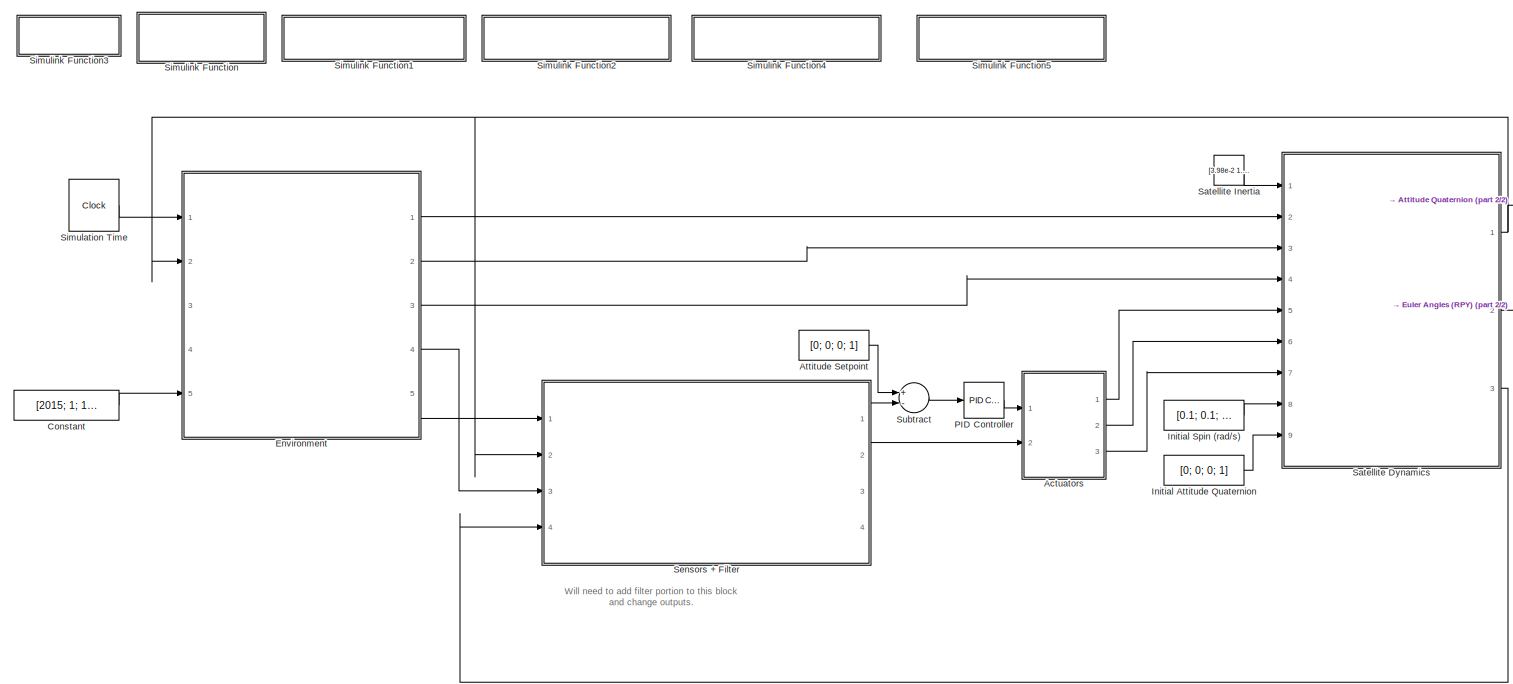
[diagram: root canvas - part 1/2, most of the canvas]
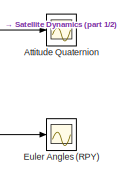
[diagram: root canvas - part 2/2, middle right region]
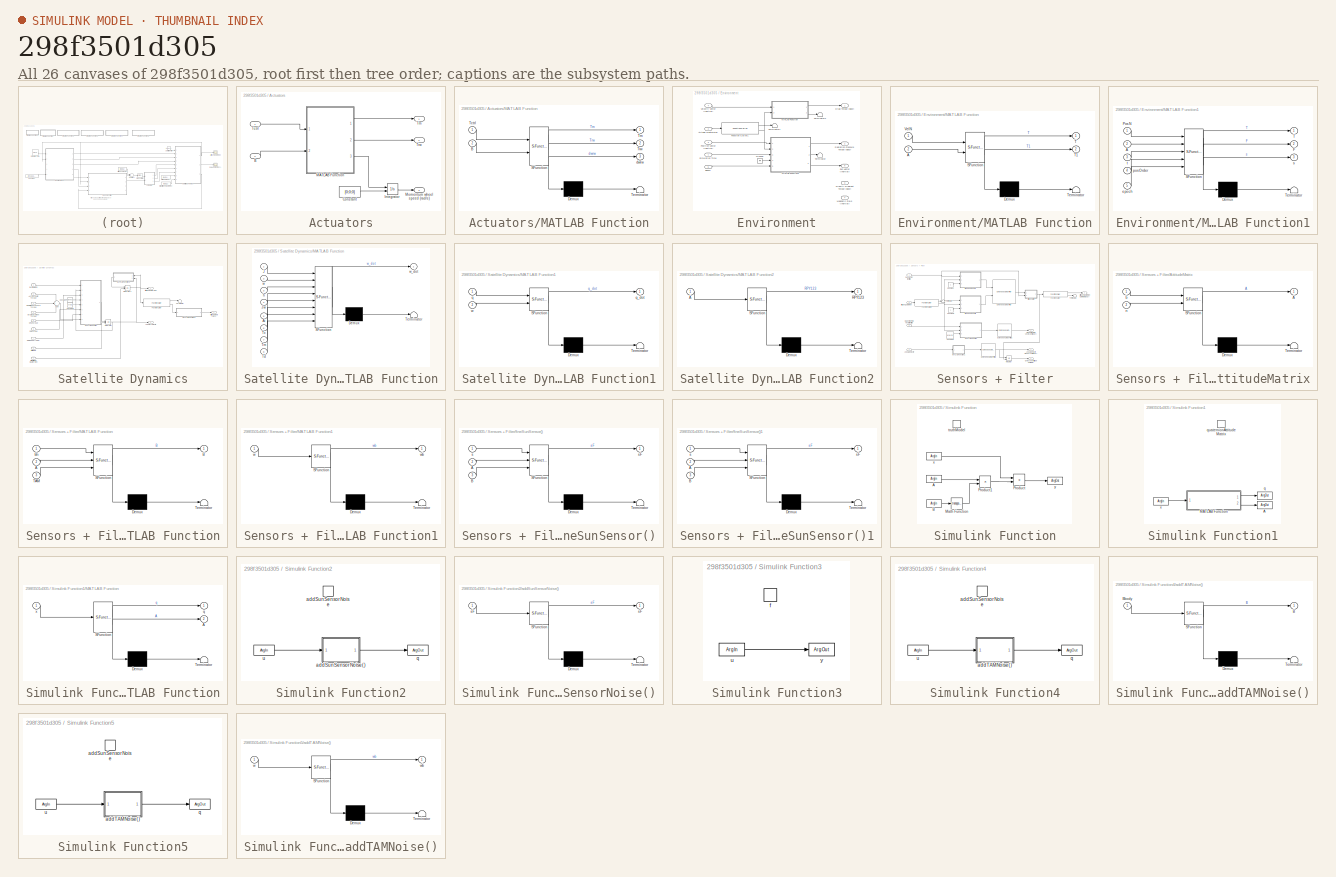
[diagram: thumbnail index - all 26 canvases of the model, root first then tree order]
MODEL slx_298f3501d305
KIND model
CONFIG AbsTol = auto
CONFIG EnableMultiTasking = off
CONFIG FixedStep = 1
CONFIG MaxStep = auto
CONFIG MinStep = auto
CONFIG RelTol = 1e-3
CONFIG SampleTimeConstraint = Unconstrained
CONFIG Solver = FixedStepAuto
CONFIG SolverName = FixedStepAuto
CONFIG StartTime = 0.0
CONFIG StopTime = 10000
BLOCK [SubSystem] Actuators
  Ports = [2, 3]
  RequestExecContextInheritance = off
  Variant = off
BLOCK [Inport] Actuators/B
  IconDisplay = Port number
  Port = 2
BLOCK [Constant] Actuators/Constant
  Value = [0;0;0]
BLOCK [Integrator] Actuators/Integrator
  InitialConditionSource = external
  Ports = [2, 1]
BLOCK [SubSystem] Actuators/MATLAB Function
  ErrorFcn = Stateflow.Translate.translate
  PermitHierarchicalResolution = ExplicitOnly
  Ports = [2, 3]
  RequestExecContextInheritance = off
  SFBlockType = MATLAB Function
  TreatAsAtomicUnit = on
  Variant = off
BLOCK [Demux] Actuators/MATLAB Function/ Demux 
  Outputs = 1
  Ports = [1, 1]
BLOCK [S-Function] Actuators/MATLAB Function/ SFunction 
  EnableBusSupport = on
  FunctionName = sf_sfun
  PortCounts = [2 4]
  Ports = [2, 4]
  SFcnIsStateOwnerBlock = off
  SFunctionDeploymentMode = off
  Tag = Stateflow S-Function ADCS_Model 15
BLOCK [Terminator] Actuators/MATLAB Function/ Terminator 
BLOCK [Inport] Actuators/MATLAB Function/B
  IconDisplay = Port number
  Port = 2
BLOCK [Inport] Actuators/MATLAB Function/Tctrl
  IconDisplay = Port number
BLOCK [Outport] Actuators/MATLAB Function/Tm
  IconDisplay = Port number
BLOCK [Outport] Actuators/MATLAB Function/Trw
  IconDisplay = Port number
  Port = 2
BLOCK [Outport] Actuators/MATLAB Function/dwrw
  IconDisplay = Port number
  Port = 3
BLOCK [Outport] Actuators/Momentum wheel speed (rad//s)
  IconDisplay = Port number
  Port = 3
BLOCK [Inport] Actuators/Tctrl
  IconDisplay = Port number
BLOCK [Outport] Actuators/Tm
  IconDisplay = Port number
BLOCK [Outport] Actuators/Trw
  IconDisplay = Port number
  Port = 2
BLOCK [Scope] Attitude Quaternion
  NumInputPorts = 1
  Ports = [1]
  ScopeSpecificationString = Simulink.scopes.TimeScopeBlockCfg('CurrentConfiguration', extmgr.ConfigurationSet(extmgr.Configuration('Core','General UI',true),extmgr.Configuration('Core','Source UI',true),extmgr.Configuration('Sources','WiredSimulink',true),extmgr.Configuration('Visuals','Time Domain',true),extmgr.Configuration('Tools','Plot Navigation',true),extmgr.Configuration('Tools','Measurements',true,'Version','2017b'))...<+45ch>
BLOCK [Constant] Attitude Setpoint
  Value = [0; 0; 0; 1]
BLOCK [Constant] Constant
  Value = [2015; 1; 1; 0; 0; 0]
BLOCK [SubSystem] Environment
  Ports = [5, 5]
  RequestExecContextInheritance = off
  Variant = off
BLOCK [Inport] Environment/Atitude Quaternion
  IconDisplay = Port number
  Port = 2
BLOCK [Outport] Environment/Drag Torque (Body)
  IconDisplay = Port number
BLOCK [Inport] Environment/Epoch
  IconDisplay = Port number
  Port = 5
BLOCK [FunctionCaller] Environment/Function Caller1
  FunctionPrototype = [q,A] = quaternionAttitudeMatrix(x)
  Ports = [1, 2]
BLOCK [Outport] Environment/Gravity Gradient Torque (Body)
  IconDisplay = Port number
  Port = 3
BLOCK [Ground] Environment/Ground
BLOCK [SubSystem] Environment/MATLAB Function
  ErrorFcn = Stateflow.Translate.translate
  PermitHierarchicalResolution = ExplicitOnly
  Ports = [2, 2]
  RequestExecContextInheritance = off
  SFBlockType = MATLAB Function
  TreatAsAtomicUnit = on
  Variant = off
BLOCK [Demux] Environment/MATLAB Function/ Demux 
  Outputs = 1
  Ports = [1, 1]
BLOCK [S-Function] Environment/MATLAB Function/ SFunction 
  EnableBusSupport = on
  FunctionName = sf_sfun
  PortCounts = [2 3]
  Ports = [2, 3]
  SFcnIsStateOwnerBlock = off
  SFunctionDeploymentMode = off
  Tag = Stateflow S-Function ADCS_Model 7
BLOCK [Terminator] Environment/MATLAB Function/ Terminator 
BLOCK [Inport] Environment/MATLAB Function/A
  IconDisplay = Port number
  Port = 2
BLOCK [Outport] Environment/MATLAB Function/T
  IconDisplay = Port number
BLOCK [Outport] Environment/MATLAB Function/T1
  IconDisplay = Port number
  Port = 2
BLOCK [Inport] Environment/MATLAB Function/VelN
  IconDisplay = Port number
BLOCK [SubSystem] Environment/MATLAB Function1
  ErrorFcn = Stateflow.Translate.translate
  PermitHierarchicalResolution = ExplicitOnly
  Ports = [5, 3]
  RequestExecContextInheritance = off
  SFBlockType = MATLAB Function
  TreatAsAtomicUnit = on
  Variant = off
BLOCK [Demux] Environment/MATLAB Function1/ Demux 
  Outputs = 1
  Ports = [1, 1]
BLOCK [S-Function] Environment/MATLAB Function1/ SFunction 
  EnableBusSupport = on
  FunctionName = sf_sfun
  PortCounts = [5 4]
  Ports = [5, 4]
  SFcnIsStateOwnerBlock = off
  SFunctionDeploymentMode = off
  Tag = Stateflow S-Function ADCS_Model 8
BLOCK [Terminator] Environment/MATLAB Function1/ Terminator 
BLOCK [Inport] Environment/MATLAB Function1/A
  IconDisplay = Port number
  Port = 2
BLOCK [Outport] Environment/MATLAB Function1/F
  IconDisplay = Port number
  Port = 2
BLOCK [Inport] Environment/MATLAB Function1/PosN
  IconDisplay = Port number
BLOCK [Outport] Environment/MATLAB Function1/T
  IconDisplay = Port number
BLOCK [Inport] Environment/MATLAB Function1/epoch
  IconDisplay = Port number
  Port = 5
BLOCK [Inport] Environment/MATLAB Function1/posOrder
  IconDisplay = Port number
  Port = 4
BLOCK [Outport] Environment/MATLAB Function1/s
  IconDisplay = Port number
  Port = 3
BLOCK [Inport] Environment/MATLAB Function1/t
  IconDisplay = Port number
  Port = 3
BLOCK [Outport] Environment/Magnetic Field (Inertial)
  IconDisplay = Port number
  Port = 4
BLOCK [Inport] Environment/Position Vector (Inertial)
  IconDisplay = Port number
  Port = 3
BLOCK [Outport] Environment/Radiation Pressure Torque (Body)
  IconDisplay = Port number
  Port = 2
BLOCK [Inport] Environment/Simulation Time
  IconDisplay = Port number
BLOCK [Outport] Environment/Sun Vector (Inertial)
  IconDisplay = Port number
  Port = 5
BLOCK [Terminator] Environment/Terminator
BLOCK [Terminator] Environment/Terminator1
BLOCK [Terminator] Environment/Terminator2
BLOCK [Inport] Environment/Velocity Vector (Inertial)
  IconDisplay = Port number
  Port = 4
BLOCK [Scope] Euler Angles (RPY)
  NumInputPorts = 1
  Ports = [1]
  ScopeSpecificationString = Simulink.scopes.TimeScopeBlockCfg('CurrentConfiguration', extmgr.ConfigurationSet(extmgr.Configuration('Core','General UI',true),extmgr.Configuration('Core','Source UI',true),extmgr.Configuration('Sources','WiredSimulink',true,'DataLoggingVariableName','ScopeData1'),extmgr.Configuration('Visuals','Time Domain',true),extmgr.Configuration('Tools','Plot Navigation',true),extmgr.Configuration('Tools',...<+40ch>
BLOCK [Constant] Initial Attitude Quaternion
  Value = [0; 0; 0; 1]
BLOCK [Constant] Initial Spin (rad//s)
  Value = [0.1; 0.1; 0.1]
BLOCK [Reference] PID Controller  REF=simulink/Continuous/PID Controller
  Commented = through
  Ports = [1, 1]
  SourceBlock = simulink/Continuous/PID Controller
  SourceProductBaseCode = SL
  SourceProductName = Simulink
  SourceType = PID 1dof
BLOCK [SubSystem] Satellite Dynamics
  Ports = [9, 3]
  RequestExecContextInheritance = off
  Variant = off
BLOCK [Inport] Satellite Dynamics/Aerodynamic Torque
  IconDisplay = Port number
  Port = 2
BLOCK [Outport] Satellite Dynamics/Angular Velocity
  IconDisplay = Port number
  Port = 3
BLOCK [Outport] Satellite Dynamics/Attitude Matrix (RPY)
  IconDisplay = Port number
  Port = 2
BLOCK [Outport] Satellite Dynamics/Attitude Quaternion
  IconDisplay = Port number
BLOCK [Constant] Satellite Dynamics/Constant
  Value = diag(ones(1,3)*3.534e-3/(7500*2*pi/60))
BLOCK [Constant] Satellite Dynamics/Constant1
  Value = eye(3)
BLOCK [FunctionCaller] Satellite Dynamics/Function Caller
  FunctionPrototype = [q,A] = quaternionAttitudeMatrix(x)
  Ports = [1, 2]
BLOCK [Inport] Satellite Dynamics/Gravity Gradient Torque
  IconDisplay = Port number
  Port = 4
BLOCK [Inport] Satellite Dynamics/Inertia Matrix
  IconDisplay = Port number
BLOCK [Inport] Satellite Dynamics/Initial Attitude Quaternion
  IconDisplay = Port number
  Port = 9
BLOCK [Inport] Satellite Dynamics/Initial Spin
  IconDisplay = Port number
  Port = 8
BLOCK [Integrator] Satellite Dynamics/Integrator
  InitialConditionSource = external
  Ports = [2, 1]
BLOCK [Integrator] Satellite Dynamics/Integrator1
  InitialConditionSource = external
  Ports = [2, 1]
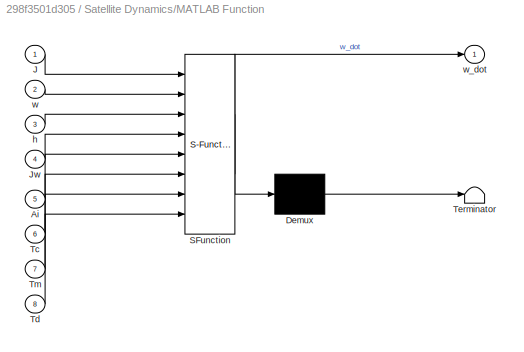
BLOCK [SubSystem] Satellite Dynamics/MATLAB Function
  ErrorFcn = Stateflow.Translate.translate
  PermitHierarchicalResolution = ExplicitOnly
  Ports = [8, 1]
  RequestExecContextInheritance = off
  SFBlockType = MATLAB Function
  TreatAsAtomicUnit = on
  Variant = off
BLOCK [Demux] Satellite Dynamics/MATLAB Function/ Demux 
  Outputs = 1
  Ports = [1, 1]
BLOCK [S-Function] Satellite Dynamics/MATLAB Function/ SFunction 
  EnableBusSupport = on
  FunctionName = sf_sfun
  PortCounts = [8 2]
  Ports = [8, 2]
  SFcnIsStateOwnerBlock = off
  SFunctionDeploymentMode = off
  Tag = Stateflow S-Function ADCS_Model 10
BLOCK [Terminator] Satellite Dynamics/MATLAB Function/ Terminator 
BLOCK [Inport] Satellite Dynamics/MATLAB Function/Ai
  IconDisplay = Port number
  Port = 5
BLOCK [Inport] Satellite Dynamics/MATLAB Function/J
  IconDisplay = Port number
BLOCK [Inport] Satellite Dynamics/MATLAB Function/Jw
  IconDisplay = Port number
  Port = 4
BLOCK [Inport] Satellite Dynamics/MATLAB Function/Tc
  IconDisplay = Port number
  Port = 6
BLOCK [Inport] Satellite Dynamics/MATLAB Function/Td
  IconDisplay = Port number
  Port = 8
BLOCK [Inport] Satellite Dynamics/MATLAB Function/Tm
  IconDisplay = Port number
  Port = 7
BLOCK [Inport] Satellite Dynamics/MATLAB Function/h
  IconDisplay = Port number
  Port = 3
BLOCK [Inport] Satellite Dynamics/MATLAB Function/w
  IconDisplay = Port number
  Port = 2
BLOCK [Outport] Satellite Dynamics/MATLAB Function/w_dot
  IconDisplay = Port number
BLOCK [SubSystem] Satellite Dynamics/MATLAB Function1
  ErrorFcn = Stateflow.Translate.translate
  PermitHierarchicalResolution = ExplicitOnly
  Ports = [2, 1]
  RequestExecContextInheritance = off
  SFBlockType = MATLAB Function
  TreatAsAtomicUnit = on
  Variant = off
BLOCK [Demux] Satellite Dynamics/MATLAB Function1/ Demux 
  Outputs = 1
  Ports = [1, 1]
BLOCK [S-Function] Satellite Dynamics/MATLAB Function1/ SFunction 
  EnableBusSupport = on
  FunctionName = sf_sfun
  PortCounts = [2 2]
  Ports = [2, 2]
  SFcnIsStateOwnerBlock = off
  SFunctionDeploymentMode = off
  Tag = Stateflow S-Function ADCS_Model 11
BLOCK [Terminator] Satellite Dynamics/MATLAB Function1/ Terminator 
BLOCK [Inport] Satellite Dynamics/MATLAB Function1/q
  IconDisplay = Port number
BLOCK [Outport] Satellite Dynamics/MATLAB Function1/q_dot
  IconDisplay = Port number
BLOCK [Inport] Satellite Dynamics/MATLAB Function1/w
  IconDisplay = Port number
  Port = 2
BLOCK [SubSystem] Satellite Dynamics/MATLAB Function2
  ErrorFcn = Stateflow.Translate.translate
  PermitHierarchicalResolution = ExplicitOnly
  Ports = [1, 1]
  RequestExecContextInheritance = off
  SFBlockType = MATLAB Function
  TreatAsAtomicUnit = on
  Variant = off
BLOCK [Demux] Satellite Dynamics/MATLAB Function2/ Demux 
  Outputs = 1
  Ports = [1, 1]
BLOCK [S-Function] Satellite Dynamics/MATLAB Function2/ SFunction 
  EnableBusSupport = on
  FunctionName = sf_sfun
  PortCounts = [1 2]
  Ports = [1, 2]
  SFcnIsStateOwnerBlock = off
  SFunctionDeploymentMode = off
  Tag = Stateflow S-Function ADCS_Model 12
BLOCK [Terminator] Satellite Dynamics/MATLAB Function2/ Terminator 
BLOCK [Inport] Satellite Dynamics/MATLAB Function2/A
  IconDisplay = Port number
BLOCK [Outport] Satellite Dynamics/MATLAB Function2/RPY123
  IconDisplay = Port number
BLOCK [Inport] Satellite Dynamics/MTQ Torque
  IconDisplay = Port number
  Port = 5
BLOCK [Inport] Satellite Dynamics/RW Speed (rad//s)
  IconDisplay = Port number
  Port = 7
BLOCK [Inport] Satellite Dynamics/RW Torque
  IconDisplay = Port number
  Port = 6
BLOCK [Inport] Satellite Dynamics/Radiation Pressure Torque
  IconDisplay = Port number
  Port = 3
BLOCK [Sum] Satellite Dynamics/Sum
  IconShape = round
  InputSameDT = off
  Inputs = +++
  OutDataTypeStr = Inherit: Inherit via internal rule
  Ports = [3, 1]
  SaturateOnIntegerOverflow = off
BLOCK [Terminator] Satellite Dynamics/Terminator
BLOCK [Constant] Satellite Inertia
  Value = [3.98e-2 1.96e-4 2.1e-5; 1.96e-4 7.54e-3 -9.98e-5; 2.1e-5 -9.98e-5 3.96e-2]
  VectorParams1D = off
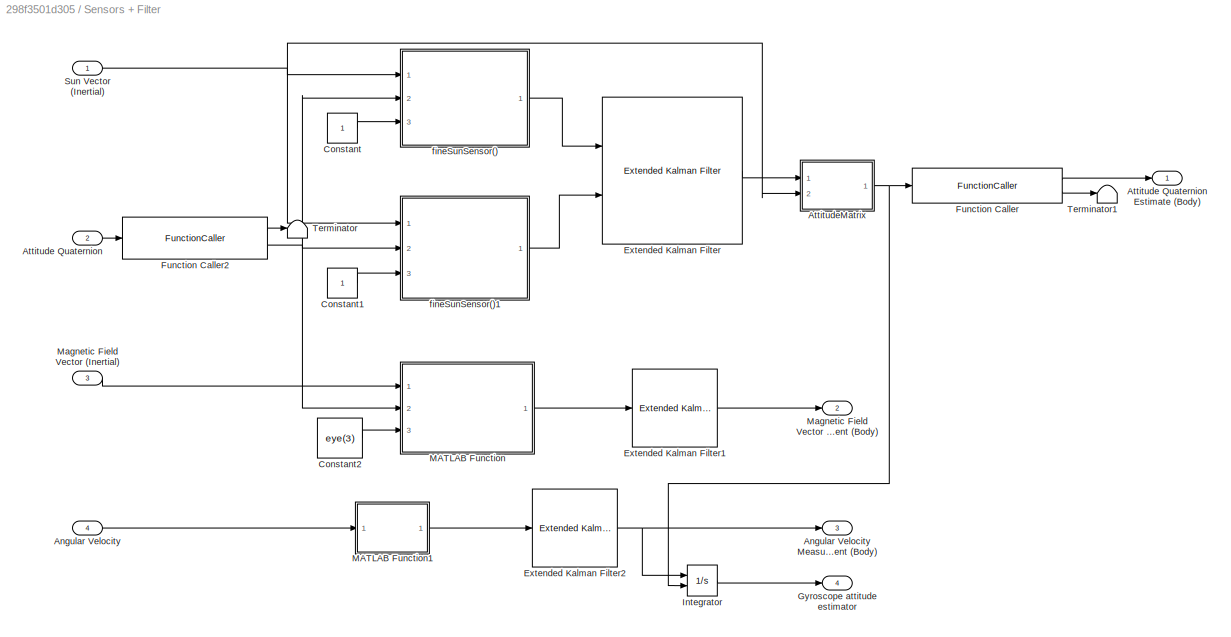
BLOCK [SubSystem] Sensors + Filter
  Ports = [4, 4]
  RequestExecContextInheritance = off
  Variant = off
BLOCK [Inport] Sensors + Filter/Angular Velocity
  IconDisplay = Port number
  Port = 4
BLOCK [Outport] Sensors + Filter/Angular Velocity Measurement (Body)
  IconDisplay = Port number
  Port = 3
BLOCK [Inport] Sensors + Filter/Attitude Quaternion
  IconDisplay = Port number
  Port = 2
BLOCK [Outport] Sensors + Filter/Attitude Quaternion Estimate (Body)
  IconDisplay = Port number
BLOCK [SubSystem] Sensors + Filter/AttitudeMatrix
  ErrorFcn = Stateflow.Translate.translate
  PermitHierarchicalResolution = ExplicitOnly
  Ports = [2, 1]
  RequestExecContextInheritance = off
  SFBlockType = MATLAB Function
  TreatAsAtomicUnit = on
  Variant = off
BLOCK [Demux] Sensors + Filter/AttitudeMatrix/ Demux 
  Outputs = 1
  Ports = [1, 1]
BLOCK [S-Function] Sensors + Filter/AttitudeMatrix/ SFunction 
  EnableBusSupport = on
  FunctionName = sf_sfun
  PortCounts = [2 2]
  Ports = [2, 2]
  SFcnIsStateOwnerBlock = off
  SFunctionDeploymentMode = off
  Tag = Stateflow S-Function ADCS_Model 3
BLOCK [Terminator] Sensors + Filter/AttitudeMatrix/ Terminator 
BLOCK [Outport] Sensors + Filter/AttitudeMatrix/A
  IconDisplay = Port number
BLOCK [Inport] Sensors + Filter/AttitudeMatrix/b
  IconDisplay = Port number
BLOCK [Inport] Sensors + Filter/AttitudeMatrix/n
  IconDisplay = Port number
  Port = 2
BLOCK [Constant] Sensors + Filter/Constant
BLOCK [Constant] Sensors + Filter/Constant1
BLOCK [Constant] Sensors + Filter/Constant2
  Value = eye(3)
BLOCK [Reference] Sensors + Filter/Extended Kalman Filter  REF=sharedTrackingLibrary/Extended Kalman Filter
  Ports = [2, 1]
  SourceBlock = sharedTrackingLibrary/Extended Kalman Filter
  SourceProductBaseCode = CT
  SourceProductName = Control System Toolbox
  SourceType = Extended Kalman Filter
BLOCK [Reference] Sensors + Filter/Extended Kalman Filter1  REF=sharedTrackingLibrary/Extended Kalman Filter
  Ports = [1, 1]
  SourceBlock = sharedTrackingLibrary/Extended Kalman Filter
  SourceProductBaseCode = CT
  SourceProductName = Control System Toolbox
  SourceType = Extended Kalman Filter
BLOCK [Reference] Sensors + Filter/Extended Kalman Filter2  REF=sharedTrackingLibrary/Extended Kalman Filter
  Ports = [1, 1]
  SourceBlock = sharedTrackingLibrary/Extended Kalman Filter
  SourceProductBaseCode = CT
  SourceProductName = Control System Toolbox
  SourceType = Extended Kalman Filter
BLOCK [FunctionCaller] Sensors + Filter/Function Caller
  FunctionPrototype = [q,A] = quaternionAttitudeMatrix(x)
  Ports = [1, 2]
BLOCK [FunctionCaller] Sensors + Filter/Function Caller2
  FunctionPrototype = [q,A] = quaternionAttitudeMatrix(x)
  Ports = [1, 2]
BLOCK [Outport] Sensors + Filter/Gyroscope attitude estimator
  IconDisplay = Port number
  Port = 4
BLOCK [Integrator] Sensors + Filter/Integrator
  InitialConditionSource = external
  Ports = [2, 1]
BLOCK [SubSystem] Sensors + Filter/MATLAB Function
  ErrorFcn = Stateflow.Translate.translate
  PermitHierarchicalResolution = ExplicitOnly
  Ports = [3, 1]
  RequestExecContextInheritance = off
  SFBlockType = MATLAB Function
  TreatAsAtomicUnit = on
  Variant = off
BLOCK [Demux] Sensors + Filter/MATLAB Function/ Demux 
  Outputs = 1
  Ports = [1, 1]
BLOCK [S-Function] Sensors + Filter/MATLAB Function/ SFunction 
  EnableBusSupport = on
  FunctionName = sf_sfun
  PortCounts = [3 2]
  Ports = [3, 2]
  SFcnIsStateOwnerBlock = off
  SFunctionDeploymentMode = off
  Tag = Stateflow S-Function ADCS_Model 9
BLOCK [Terminator] Sensors + Filter/MATLAB Function/ Terminator 
BLOCK [Inport] Sensors + Filter/MATLAB Function/A
  IconDisplay = Port number
  Port = 2
BLOCK [Outport] Sensors + Filter/MATLAB Function/B
  IconDisplay = Port number
BLOCK [Inport] Sensors + Filter/MATLAB Function/Bn
  IconDisplay = Port number
BLOCK [Inport] Sensors + Filter/MATLAB Function/TAM
  IconDisplay = Port number
  Port = 3
BLOCK [SubSystem] Sensors + Filter/MATLAB Function1
  ErrorFcn = Stateflow.Translate.translate
  PermitHierarchicalResolution = ExplicitOnly
  Ports = [1, 1]
  RequestExecContextInheritance = off
  SFBlockType = MATLAB Function
  TreatAsAtomicUnit = on
  Variant = off
BLOCK [Demux] Sensors + Filter/MATLAB Function1/ Demux 
  Outputs = 1
  Ports = [1, 1]
BLOCK [S-Function] Sensors + Filter/MATLAB Function1/ SFunction 
  EnableBusSupport = on
  FunctionName = sf_sfun
  PortCounts = [1 2]
  Ports = [1, 2]
  SFcnIsStateOwnerBlock = off
  SFunctionDeploymentMode = off
  Tag = Stateflow S-Function ADCS_Model 13
BLOCK [Terminator] Sensors + Filter/MATLAB Function1/ Terminator 
BLOCK [Inport] Sensors + Filter/MATLAB Function1/w
  IconDisplay = Port number
BLOCK [Outport] Sensors + Filter/MATLAB Function1/wb
  IconDisplay = Port number
BLOCK [Inport] Sensors + Filter/Magnetic Field Vector (Inertial)
  IconDisplay = Port number
  Port = 3
BLOCK [Outport] Sensors + Filter/Magnetic Field Vector Measurement (Body)
  IconDisplay = Port number
  Port = 2
BLOCK [Inport] Sensors + Filter/Sun Vector (Inertial)
  IconDisplay = Port number
BLOCK [Terminator] Sensors + Filter/Terminator
BLOCK [Terminator] Sensors + Filter/Terminator1
BLOCK [SubSystem] Sensors + Filter/fineSunSensor()
  ErrorFcn = Stateflow.Translate.translate
  PermitHierarchicalResolution = ExplicitOnly
  Ports = [3, 1]
  RequestExecContextInheritance = off
  SFBlockType = MATLAB Function
  TreatAsAtomicUnit = on
  Variant = off
BLOCK [Demux] Sensors + Filter/fineSunSensor()/ Demux 
  Outputs = 1
  Ports = [1, 1]
BLOCK [S-Function] Sensors + Filter/fineSunSensor()/ SFunction 
  EnableBusSupport = on
  FunctionName = sf_sfun
  PortCounts = [3 2]
  Ports = [3, 2]
  SFcnIsStateOwnerBlock = off
  SFunctionDeploymentMode = off
  Tag = Stateflow S-Function ADCS_Model 2
BLOCK [Terminator] Sensors + Filter/fineSunSensor()/ Terminator 
BLOCK [Inport] Sensors + Filter/fineSunSensor()/A
  IconDisplay = Port number
  Port = 2
BLOCK [Inport] Sensors + Filter/fineSunSensor()/B
  IconDisplay = Port number
  Port = 3
BLOCK [Inport] Sensors + Filter/fineSunSensor()/s
  IconDisplay = Port number
BLOCK [Outport] Sensors + Filter/fineSunSensor()/sF
  IconDisplay = Port number
BLOCK [SubSystem] Sensors + Filter/fineSunSensor()1
  ErrorFcn = Stateflow.Translate.translate
  PermitHierarchicalResolution = ExplicitOnly
  Ports = [3, 1]
  RequestExecContextInheritance = off
  SFBlockType = MATLAB Function
  TreatAsAtomicUnit = on
  Variant = off
BLOCK [Demux] Sensors + Filter/fineSunSensor()1/ Demux 
  Outputs = 1
  Ports = [1, 1]
BLOCK [S-Function] Sensors + Filter/fineSunSensor()1/ SFunction 
  EnableBusSupport = on
  FunctionName = sf_sfun
  PortCounts = [3 2]
  Ports = [3, 2]
  SFcnIsStateOwnerBlock = off
  SFunctionDeploymentMode = off
  Tag = Stateflow S-Function ADCS_Model 1
BLOCK [Terminator] Sensors + Filter/fineSunSensor()1/ Terminator 
BLOCK [Inport] Sensors + Filter/fineSunSensor()1/A
  IconDisplay = Port number
  Port = 2
BLOCK [Inport] Sensors + Filter/fineSunSensor()1/B
  IconDisplay = Port number
  Port = 3
BLOCK [Inport] Sensors + Filter/fineSunSensor()1/s
  IconDisplay = Port number
BLOCK [Outport] Sensors + Filter/fineSunSensor()1/sF
  IconDisplay = Port number
BLOCK [Clock] Simulation Time
  Decimation = 1
  DisplayTime = on
BLOCK [SubSystem] Simulink Function
  Ports = [0, 0, 0, 1]
  RequestExecContextInheritance = off
  TreatAsAtomicUnit = on
  Variant = off
BLOCK [ArgIn] Simulink Function/A
  ArgumentName = A
  DisableCoverage = on
  Port = 2
BLOCK [ArgIn] Simulink Function/B
  ArgumentName = B
  DisableCoverage = on
  Port = 3
BLOCK [Math] Simulink Function/Math Function
  Operator = transpose
  Ports = [1, 1]
BLOCK [Product] Simulink Function/Product
  InputSameDT = off
  OutDataTypeStr = Inherit: Inherit via internal rule
  Ports = [2, 1]
  RndMeth = Floor
  SaturateOnIntegerOverflow = off
BLOCK [Product] Simulink Function/Product1
  InputSameDT = off
  OutDataTypeStr = Inherit: Inherit via internal rule
  Ports = [2, 1]
  RndMeth = Floor
  SaturateOnIntegerOverflow = off
BLOCK [TriggerPort] Simulink Function/truthModel
  FunctionName = truthModel
  FunctionVisibility = scoped
  IsSimulinkFunction = on
  Ports = []
  StatesWhenEnabling = held
  TriggerType = function-call
  VariantControl = (inherit)
BLOCK [ArgIn] Simulink Function/x
  ArgumentName = x
  DisableCoverage = on
BLOCK [ArgOut] Simulink Function/y
  ArgumentName = y
  DisableCoverage = on
BLOCK [SubSystem] Simulink Function1
  Ports = [0, 0, 0, 1]
  RequestExecContextInheritance = off
  TreatAsAtomicUnit = on
  Variant = off
BLOCK [ArgOut] Simulink Function1/A
  ArgumentName = A
  DisableCoverage = on
  Port = 2
BLOCK [SubSystem] Simulink Function1/MATLAB Function
  ErrorFcn = Stateflow.Translate.translate
  PermitHierarchicalResolution = ExplicitOnly
  Ports = [1, 2]
  RequestExecContextInheritance = off
  SFBlockType = MATLAB Function
  TreatAsAtomicUnit = on
  Variant = off
BLOCK [Demux] Simulink Function1/MATLAB Function/ Demux 
  Outputs = 1
  Ports = [1, 1]
BLOCK [S-Function] Simulink Function1/MATLAB Function/ SFunction 
  EnableBusSupport = on
  FunctionName = sf_sfun
  PortCounts = [1 3]
  Ports = [1, 3]
  SFcnIsStateOwnerBlock = off
  SFunctionDeploymentMode = off
  Tag = Stateflow S-Function ADCS_Model 4
BLOCK [Terminator] Simulink Function1/MATLAB Function/ Terminator 
BLOCK [Outport] Simulink Function1/MATLAB Function/A
  IconDisplay = Port number
  Port = 2
BLOCK [Outport] Simulink Function1/MATLAB Function/q
  IconDisplay = Port number
BLOCK [Inport] Simulink Function1/MATLAB Function/x
  IconDisplay = Port number
BLOCK [ArgOut] Simulink Function1/q
  ArgumentName = q
  DisableCoverage = on
BLOCK [TriggerPort] Simulink Function1/quaternionAttitudeMatrix
  FunctionName = quaternionAttitudeMatrix
  FunctionVisibility = scoped
  IsSimulinkFunction = on
  Ports = []
  StatesWhenEnabling = held
  TriggerType = function-call
  VariantControl = (inherit)
BLOCK [ArgIn] Simulink Function1/x
  ArgumentName = x
  DisableCoverage = on
BLOCK [SubSystem] Simulink Function2
  Ports = [0, 0, 0, 1]
  RequestExecContextInheritance = off
  TreatAsAtomicUnit = on
  Variant = off
BLOCK [TriggerPort] Simulink Function2/addSunSensorNoise
  FunctionName = addSunSensorNoise
  FunctionVisibility = scoped
  IsSimulinkFunction = on
  Ports = []
  StatesWhenEnabling = held
  TriggerType = function-call
  VariantControl = (inherit)
BLOCK [SubSystem] Simulink Function2/addSunSensorNoise()
  ErrorFcn = Stateflow.Translate.translate
  PermitHierarchicalResolution = ExplicitOnly
  Ports = [1, 1]
  RequestExecContextInheritance = off
  SFBlockType = MATLAB Function
  TreatAsAtomicUnit = on
  Variant = off
BLOCK [Demux] Simulink Function2/addSunSensorNoise()/ Demux 
  Outputs = 1
  Ports = [1, 1]
BLOCK [S-Function] Simulink Function2/addSunSensorNoise()/ SFunction 
  EnableBusSupport = on
  FunctionName = sf_sfun
  PortCounts = [1 2]
  Ports = [1, 2]
  SFcnIsStateOwnerBlock = off
  SFunctionDeploymentMode = off
  Tag = Stateflow S-Function ADCS_Model 5
BLOCK [Terminator] Simulink Function2/addSunSensorNoise()/ Terminator 
BLOCK [Outport] Simulink Function2/addSunSensorNoise()/sF
  IconDisplay = Port number
BLOCK [Inport] Simulink Function2/addSunSensorNoise()/sF 
  IconDisplay = Port number
BLOCK [ArgOut] Simulink Function2/q
  ArgumentName = sF
  DisableCoverage = on
BLOCK [ArgIn] Simulink Function2/u
  ArgumentName = x
  DisableCoverage = on
BLOCK [SubSystem] Simulink Function3
  Ports = [0, 0, 0, 1]
  RequestExecContextInheritance = off
  TreatAsAtomicUnit = on
  Variant = off
BLOCK [TriggerPort] Simulink Function3/f
  FunctionName = stateTrans
  FunctionVisibility = scoped
  IsSimulinkFunction = on
  Ports = []
  StatesWhenEnabling = held
  TriggerType = function-call
  VariantControl = (inherit)
BLOCK [ArgIn] Simulink Function3/u
  ArgumentName = u
  DisableCoverage = on
BLOCK [ArgOut] Simulink Function3/y
  ArgumentName = y
  DisableCoverage = on
BLOCK [SubSystem] Simulink Function4
  Ports = [0, 0, 0, 1]
  RequestExecContextInheritance = off
  TreatAsAtomicUnit = on
  Variant = off
BLOCK [TriggerPort] Simulink Function4/addSunSensorNoise
  FunctionName = addTAMNoise
  FunctionVisibility = scoped
  IsSimulinkFunction = on
  Ports = []
  StatesWhenEnabling = held
  TriggerType = function-call
  VariantControl = (inherit)
BLOCK [SubSystem] Simulink Function4/addTAMNoise()
  ErrorFcn = Stateflow.Translate.translate
  PermitHierarchicalResolution = ExplicitOnly
  Ports = [1, 1]
  RequestExecContextInheritance = off
  SFBlockType = MATLAB Function
  TreatAsAtomicUnit = on
  Variant = off
BLOCK [Demux] Simulink Function4/addTAMNoise()/ Demux 
  Outputs = 1
  Ports = [1, 1]
BLOCK [S-Function] Simulink Function4/addTAMNoise()/ SFunction 
  EnableBusSupport = on
  FunctionName = sf_sfun
  PortCounts = [1 2]
  Ports = [1, 2]
  SFcnIsStateOwnerBlock = off
  SFunctionDeploymentMode = off
  Tag = Stateflow S-Function ADCS_Model 6
BLOCK [Terminator] Simulink Function4/addTAMNoise()/ Terminator 
BLOCK [Outport] Simulink Function4/addTAMNoise()/B
  IconDisplay = Port number
BLOCK [Inport] Simulink Function4/addTAMNoise()/Bbody
  IconDisplay = Port number
BLOCK [ArgOut] Simulink Function4/q
  ArgumentName = sF
  DisableCoverage = on
BLOCK [ArgIn] Simulink Function4/u
  ArgumentName = x
  DisableCoverage = on
BLOCK [SubSystem] Simulink Function5
  Ports = [0, 0, 0, 1]
  RequestExecContextInheritance = off
  TreatAsAtomicUnit = on
  Variant = off
BLOCK [TriggerPort] Simulink Function5/addSunSensorNoise
  FunctionName = addGyroNoise
  FunctionVisibility = scoped
  IsSimulinkFunction = on
  Ports = []
  StatesWhenEnabling = held
  TriggerType = function-call
  VariantControl = (inherit)
BLOCK [SubSystem] Simulink Function5/addTAMNoise()
  ErrorFcn = Stateflow.Translate.translate
  PermitHierarchicalResolution = ExplicitOnly
  Ports = [1, 1]
  RequestExecContextInheritance = off
  SFBlockType = MATLAB Function
  TreatAsAtomicUnit = on
  Variant = off
BLOCK [Demux] Simulink Function5/addTAMNoise()/ Demux 
  Outputs = 1
  Ports = [1, 1]
BLOCK [S-Function] Simulink Function5/addTAMNoise()/ SFunction 
  EnableBusSupport = on
  FunctionName = sf_sfun
  PortCounts = [1 2]
  Ports = [1, 2]
  SFcnIsStateOwnerBlock = off
  SFunctionDeploymentMode = off
  Tag = Stateflow S-Function ADCS_Model 14
BLOCK [Terminator] Simulink Function5/addTAMNoise()/ Terminator 
BLOCK [Inport] Simulink Function5/addTAMNoise()/w
  IconDisplay = Port number
BLOCK [Outport] Simulink Function5/addTAMNoise()/wb
  IconDisplay = Port number
BLOCK [ArgOut] Simulink Function5/q
  ArgumentName = sF
  DisableCoverage = on
BLOCK [ArgIn] Simulink Function5/u
  ArgumentName = x
  DisableCoverage = on
BLOCK [Sum] Subtract
  InputSameDT = off
  Inputs = +-
  OutDataTypeStr = Inherit: Inherit via internal rule
  Ports = [2, 1]
  SaturateOnIntegerOverflow = off
ANNOTATION (root): Will need to add filter portion to this block and change outputs.
LINE Actuators/B:1 -> Actuators/MATLAB Function:2
LINE Actuators/Constant:1 -> Actuators/Integrator:2
LINE Actuators/Integrator:1 -> Actuators/Momentum wheel speed (rad//s):1
LINE Actuators/MATLAB Function:1 -> Actuators/Tm:1
LINE Actuators/MATLAB Function:2 -> Actuators/Trw:1
LINE Actuators/MATLAB Function:3 -> Actuators/Integrator:1
LINE Actuators/Tctrl:1 -> Actuators/MATLAB Function:1
LINE Actuators:1 -> Satellite Dynamics:5
LINE Actuators:2 -> Satellite Dynamics:6
LINE Actuators:3 -> Satellite Dynamics:7
LINE Attitude Setpoint:1 -> Subtract:1
LINE Constant:1 -> Environment:5
LINE Environment/Atitude Quaternion:1 -> Environment/Function Caller1:1
LINE Environment/Epoch:1 -> Environment/MATLAB Function1:5
LINE Environment/Function Caller1:1 -> Environment/Terminator1:1
NET Environment/Function Caller1:2 -> Environment/MATLAB Function1:2, Environment/MATLAB Function:2
LINE Environment/Ground:1 -> Environment/MATLAB Function1:4
LINE Environment/MATLAB Function1:1 -> Environment/Radiation Pressure Torque (Body):1
LINE Environment/MATLAB Function1:2 -> Environment/Terminator:1
LINE Environment/MATLAB Function1:3 -> Environment/Sun Vector (Inertial):1
LINE Environment/MATLAB Function:1 -> Environment/Drag Torque (Body):1
LINE Environment/MATLAB Function:2 -> Environment/Terminator2:1
LINE Environment/Position Vector (Inertial):1 -> Environment/MATLAB Function1:1
LINE Environment/Simulation Time:1 -> Environment/MATLAB Function1:3
LINE Environment/Velocity Vector (Inertial):1 -> Environment/MATLAB Function:1
LINE Environment:1 -> Satellite Dynamics:2
LINE Environment:2 -> Satellite Dynamics:3
LINE Environment:3 -> Satellite Dynamics:4
LINE Environment:4 -> Sensors + Filter:3
LINE Environment:5 -> Sensors + Filter:1
LINE Initial Attitude Quaternion:1 -> Satellite Dynamics:9
LINE Initial Spin (rad//s):1 -> Satellite Dynamics:8
LINE PID Controller:1 -> Actuators:1
LINE Satellite Dynamics/Aerodynamic Torque:1 -> Satellite Dynamics/Sum:1
LINE Satellite Dynamics/Constant1:1 -> Satellite Dynamics/MATLAB Function:5
LINE Satellite Dynamics/Constant:1 -> Satellite Dynamics/MATLAB Function:4
LINE Satellite Dynamics/Function Caller:1 -> Satellite Dynamics/Terminator:1
LINE Satellite Dynamics/Function Caller:2 -> Satellite Dynamics/MATLAB Function2:1
LINE Satellite Dynamics/Gravity Gradient Torque:1 -> Satellite Dynamics/Sum:3
LINE Satellite Dynamics/Inertia Matrix:1 -> Satellite Dynamics/MATLAB Function:1
LINE Satellite Dynamics/Initial Attitude Quaternion:1 -> Satellite Dynamics/Integrator1:2
LINE Satellite Dynamics/Initial Spin:1 -> Satellite Dynamics/Integrator:2
NET Satellite Dynamics/Integrator1:1 -> Satellite Dynamics/Attitude Quaternion:1, Satellite Dynamics/Function Caller:1, Satellite Dynamics/MATLAB Function1:1
NET Satellite Dynamics/Integrator:1 -> Satellite Dynamics/Angular Velocity:1, Satellite Dynamics/MATLAB Function1:2, Satellite Dynamics/MATLAB Function:2
LINE Satellite Dynamics/MATLAB Function1:1 -> Satellite Dynamics/Integrator1:1
LINE Satellite Dynamics/MATLAB Function2:1 -> Satellite Dynamics/Attitude Matrix (RPY):1
LINE Satellite Dynamics/MATLAB Function:1 -> Satellite Dynamics/Integrator:1
LINE Satellite Dynamics/MTQ Torque:1 -> Satellite Dynamics/MATLAB Function:7
LINE Satellite Dynamics/RW Speed (rad//s):1 -> Satellite Dynamics/MATLAB Function:3
LINE Satellite Dynamics/RW Torque:1 -> Satellite Dynamics/MATLAB Function:6
LINE Satellite Dynamics/Radiation Pressure Torque:1 -> Satellite Dynamics/Sum:2
LINE Satellite Dynamics/Sum:1 -> Satellite Dynamics/MATLAB Function:8
NET Satellite Dynamics:1 -> Attitude Quaternion:1, Environment:2, Sensors + Filter:2
LINE Satellite Dynamics:2 -> Euler Angles (RPY):1
LINE Satellite Dynamics:3 -> Sensors + Filter:4
LINE Satellite Inertia:1 -> Satellite Dynamics:1
LINE Sensors + Filter/Angular Velocity:1 -> Sensors + Filter/MATLAB Function1:1
LINE Sensors + Filter/Attitude Quaternion:1 -> Sensors + Filter/Function Caller2:1
NET Sensors + Filter/AttitudeMatrix:1 -> Sensors + Filter/Function Caller:1, Sensors + Filter/Integrator:2
LINE Sensors + Filter/Constant1:1 -> Sensors + Filter/fineSunSensor()1:3
LINE Sensors + Filter/Constant2:1 -> Sensors + Filter/MATLAB Function:3
LINE Sensors + Filter/Constant:1 -> Sensors + Filter/fineSunSensor():3
LINE Sensors + Filter/Extended Kalman Filter1:1 -> Sensors + Filter/Magnetic Field Vector Measurement (Body):1
NET Sensors + Filter/Extended Kalman Filter2:1 -> Sensors + Filter/Angular Velocity Measurement (Body):1, Sensors + Filter/Integrator:1
LINE Sensors + Filter/Extended Kalman Filter:1 -> Sensors + Filter/AttitudeMatrix:1
LINE Sensors + Filter/Function Caller2:1 -> Sensors + Filter/Terminator:1
NET Sensors + Filter/Function Caller2:2 -> Sensors + Filter/MATLAB Function:2, Sensors + Filter/fineSunSensor()1:2, Sensors + Filter/fineSunSensor():2
LINE Sensors + Filter/Function Caller:1 -> Sensors + Filter/Attitude Quaternion Estimate (Body):1
LINE Sensors + Filter/Function Caller:2 -> Sensors + Filter/Terminator1:1
LINE Sensors + Filter/Integrator:1 -> Sensors + Filter/Gyroscope attitude estimator:1
LINE Sensors + Filter/MATLAB Function1:1 -> Sensors + Filter/Extended Kalman Filter2:1
LINE Sensors + Filter/MATLAB Function:1 -> Sensors + Filter/Extended Kalman Filter1:1
LINE Sensors + Filter/Magnetic Field Vector (Inertial):1 -> Sensors + Filter/MATLAB Function:1
NET Sensors + Filter/Sun Vector (Inertial):1 -> Sensors + Filter/AttitudeMatrix:2, Sensors + Filter/fineSunSensor()1:1, Sensors + Filter/fineSunSensor():1
LINE Sensors + Filter/fineSunSensor()1:1 -> Sensors + Filter/Extended Kalman Filter:2
LINE Sensors + Filter/fineSunSensor():1 -> Sensors + Filter/Extended Kalman Filter:1
LINE Sensors + Filter:1 -> Subtract:2
LINE Sensors + Filter:2 -> Actuators:2
LINE Simulation Time:1 -> Environment:1
LINE Simulink Function/A:1 -> Simulink Function/Product1:1
LINE Simulink Function/B:1 -> Simulink Function/Math Function:1
LINE Simulink Function/Math Function:1 -> Simulink Function/Product1:2
LINE Simulink Function/Product1:1 -> Simulink Function/Product:2
LINE Simulink Function/Product:1 -> Simulink Function/y:1
LINE Simulink Function/x:1 -> Simulink Function/Product:1
LINE Simulink Function1/MATLAB Function:1 -> Simulink Function1/q:1
LINE Simulink Function1/MATLAB Function:2 -> Simulink Function1/A:1
LINE Simulink Function1/x:1 -> Simulink Function1/MATLAB Function:1
LINE Simulink Function2/addSunSensorNoise():1 -> Simulink Function2/q:1
LINE Simulink Function2/u:1 -> Simulink Function2/addSunSensorNoise():1
LINE Simulink Function3/u:1 -> Simulink Function3/y:1
LINE Simulink Function4/addTAMNoise():1 -> Simulink Function4/q:1
LINE Simulink Function4/u:1 -> Simulink Function4/addTAMNoise():1
LINE Simulink Function5/addTAMNoise():1 -> Simulink Function5/q:1
LINE Simulink Function5/u:1 -> Simulink Function5/addTAMNoise():1
LINE Subtract:1 -> PID Controller:1
note: NET lines group one-source signal fan-out (src -> all destinations, sorted); 1:1 wires keep LINE
CHART Sensors + Filter/fineSunSensor()1 states=1 transitions=1
  STATE_LABEL 'eML_blk_kernel()'
  STATE_LABEL 'SCRIPT:\nfunction sF = fineSunSensor(s, A, B)\n\n% Transform sun vector from inertial to body to fine sun sensor\nsF = B\'*A*s;\n% Check if FSS "sees" sun (FOV +/- 60 deg):\nif acosd(dot(sF, [0; 0; 1])) > 180\n    sF = zeros(3,1);\nelse\n    % Transform sun vector into sun sensor coordinate system\n    % sB = B*sB;\n    % Compute sun coordinate angles:\n    alpha = acosd(dot(sF, [1; 0; 0]));\n    beta = acosd(d...<+477ch>'
CHART Sensors + Filter/fineSunSensor() states=1 transitions=1
  STATE_LABEL 'eML_blk_kernel()'
  STATE_LABEL 'SCRIPT:\nfunction sF = fineSunSensor(s, A, B)\n\n% Transform sun vector from inertial to body to fine sun sensor\nsF = B\'*A*s;\n% Check if FSS "sees" sun (FOV +/- 60 deg):\nif acosd(dot(sF, [0; 0; 1])) > 180\n    sF = zeros(3,1);\nelse\n    % Transform sun vector into sun sensor coordinate system\n    % sB = B*sB;\n    % Compute sun coordinate angles:\n    alpha = acosd(dot(sF, [1; 0; 0]));\n    beta = acosd(d...<+477ch>'
CHART Sensors + Filter/AttitudeMatrix states=1 transitions=1
  STATE_LABEL 'eML_blk_kernel()'
  STATE_LABEL "SCRIPT:\nfunction A = fcn(b,n)\nif isrow(b)\n    b = b';\nend\nif isrow(n)\n    n = n';\nend\n\nv = cross(n,b);\ns = norm(v);\nc = dot(b,n);\n\nA = eye(3) + crossMatrix(v) + (crossMatrix(v))^2*((1-c)/s^2);\n"
CHART Simulink Function1/MATLAB Function states=1 transitions=1
  STATE_LABEL 'eML_blk_kernel()'
  STATE_LABEL "SCRIPT:\nfunction [q, A] = quaternionAttitudeMatrix(x)\n\nif isvector(x)\n    assert(length(x) == 4, 'Quaternion must be 1x4');\n    if isrow(x)\n        x = x';\n    end\n    A = Xi(x)'*Psi(x);\n    q = x;\nelse\n    assert(mean(size(x)) == 3, 'Direction cosine matrix must be 3x3');\n    q = zeros(4,1);\n    q(4) = sqrt(1+trace(x))/2;\n    q(1) = 1/4/q(4)*(x(2,3)-x(3,2));\n    q(2) = 1/4/q(4)*(x(3,1)-x(1,3));\n ...<+301ch>"
CHART Simulink Function2/addSunSensorNoise() states=1 transitions=1
  STATE_LABEL 'eML_blk_kernel()'
  STATE_LABEL 'SCRIPT:\nfunction sF = fcn(sF)\n\n% Check if FSS "sees" sun (FOV +/- 60 deg):\nif acosd(dot(sF, [0; 0; 1])) > 180\n    sF = zeros(3,1);\nelse\n    % Transform sun vector into sun sensor coordinate system\n    % sB = B*sB;\n    % Compute sun coordinate angles:\n    alpha = acosd(dot(sF, [1; 0; 0]));\n    beta = acosd(dot(sF, [0; 1; 0]));\n    % Add normally distributed Gaussian noise to angle readings (zero me...<+377ch>'
CHART Simulink Function4/addTAMNoise() states=1 transitions=1
  STATE_LABEL 'eML_blk_kernel()'
  STATE_LABEL 'SCRIPT:\nfunction B = fcn(Bbody)\n\n% Noise parameters: accuracy and associated confidence interval\naccuracy = []; sigma = []; \n% Add noise to local magnetic field value for sensor output\nB = (accuracy/sigma)*randn(3,1) + Bbody;\nend'
CHART Environment/MATLAB Function states=1 transitions=1
  STATE_LABEL 'eML_blk_kernel()'
  STATE_LABEL "SCRIPT:\nfunction [T, T1] = aerodynDrag(VelN, A)\n\n% Make sure VelN is a column vector\nif ~iscolumn(VelN)\n    VelN = VelN';\nend\n\n% Atmospheric density at 400km altitude per the MSISE-90 Model of Earth's\n% Upper Atmosphere (kg m^-3)\nLowActivityDensity = 5.68e-13; HighActivityDensity = 5.04e-11;\n% Assign local density a psuedorandom value on the interval of low solar\n% activity density to hihgh solar ...<+1229ch>"
CHART Environment/MATLAB Function1 states=1 transitions=1
  STATE_LABEL 'eML_blk_kernel()'
  STATE_LABEL "SCRIPT:\nfunction [T, F, s] = solarRadPress(PosN, A, t, posOrder, epoch)\n\nif strcmp(posOrder, 'sphere')\n    PosN = sph2cart(PosN(1), PosN(2), PosN(3));\nelseif strcmp(posOrder, 'cylin')\n    PosN = pol2cart(PosN(1), PosN(2), PosN(3));\nend\n\n% Specular reflection and diffusion coefficients for each of the six\n% surfaces of a CubeSat. Surface property. (unitless in [0,1]) Current\n% values are speculativ...<+1388ch>"
CHART Sensors + Filter/MATLAB Function states=1 transitions=1
  STATE_LABEL 'eML_blk_kernel()'
  STATE_LABEL 'SCRIPT:\nfunction B   = threeAxisMagnetometer( Bn, A, TAM )\n% threeAxisMagnetometer    Produces magnetometer sensor reading from model\n%   \n%   [B] = threeAxisMagnetometer(Bn, A, TAM) will return the output of a\n%   magnetometer given a model magnetic field vector Bn in inertial \n%   coordinates. The output vector B will be in the body-coordinate system.\n%   The matrix TAM (optional) is a rotation ...<+898ch>'
CHART Satellite Dynamics/MATLAB Function states=1 transitions=1
  STATE_LABEL 'eML_blk_kernel()'
  STATE_LABEL "SCRIPT:\nfunction w_dot = satelliteDynamics(J, w, h, Jw, Ai, Tc, Tm, Td)\n\nJ_hat = J-(Ai*Jw)*Ai';\nw_dot = J_hat\\(-crossMatrix(w)*(J*w+Ai*Jw*h)+Ai*Tc+Tm+Td);"
CHART Satellite Dynamics/MATLAB Function1 states=1 transitions=1
  STATE_LABEL 'eML_blk_kernel()'
  STATE_LABEL "SCRIPT:\nfunction q_dot = quaternionRate(q, w)\n\nq4 = q(4);\n\nq_dot = [q4*eye(3)+crossmatrix(q(1:3)); -q(1:3)']/2*w;"
CHART Satellite Dynamics/MATLAB Function2 states=1 transitions=1
  STATE_LABEL 'eML_blk_kernel()'
  STATE_LABEL 'SCRIPT:\nfunction RPY123 = attitudeMatrix2RPY123(A)\n\nroll_phi = -atand(A(3,2)/A(3,3));\npitch_theta = asind(A(3,1));\nyaw_psi = -atand(A(2,1)/A(1,1));\n\nRPY123 = [roll_phi; pitch_theta; yaw_psi];\nend'
CHART Sensors + Filter/MATLAB Function1 states=1 transitions=1
  STATE_LABEL 'eML_blk_kernel()'
  STATE_LABEL "SCRIPT:\nfunction wb   = gyroscope( w ) \n%gyroscope      Gyroscope angular velocity reading\n%\n%   [wb] = gyroscope(w) will produce the body-coordinate angular velocity\n%   vector 'wb' by adding gyro bias and gaussian noise to the model angular\n%   velocity vector 'w'. \n%\n%   [wb, t] = gyroscope(w) will also output the orientation change due to\n%   the angular velocity vector 'wb' in 't'. The output...<+358ch>"
CHART Simulink Function5/addTAMNoise() states=1 transitions=1
  STATE_LABEL 'eML_blk_kernel()'
  STATE_LABEL "SCRIPT:\nfunction wb   = gyroscopeN( w ) \n%gyroscope      Gyroscope angular velocity reading\n%\n%   [wb] = gyroscope(w) will produce the body-coordinate angular velocity\n%   vector 'wb' by adding gyro bias and gaussian noise to the model angular\n%   velocity vector 'w'. \n%\n%   [wb, t] = gyroscope(w) will also output the orientation change due to\n%   the angular velocity vector 'wb' in 't'. The outpu...<+359ch>"
CHART Actuators/MATLAB Function states=1 transitions=1
  STATE_LABEL 'eML_blk_kernel()'
  STATE_LABEL 'SCRIPT:\nfunction [ Tm, Trw, dwrw ] = actuatorModel( Tctrl, B)\n\nmu = cross(Tctrl, B);\nmusat = 0.015;\nif max(mu) <= musat\n    mu_m = mu;\nelse\n    mu_unit = mu/norm(mu);\n    mu_max = max(mu);T\n    mu_m = musat/mu_max*mu_unit;\nend\nTm = cross(mu_m, B);\n\nTrem = Tctrl - Tm;\nif Trem == zeros(3,1)\n    \nIrw = 3.534e-3/(7500*2*pi/60);\ndwrw = Trem/Irw; \n%somehow cap the increase in reaction wheel speed\n\nwrw_n...<+40ch>'
